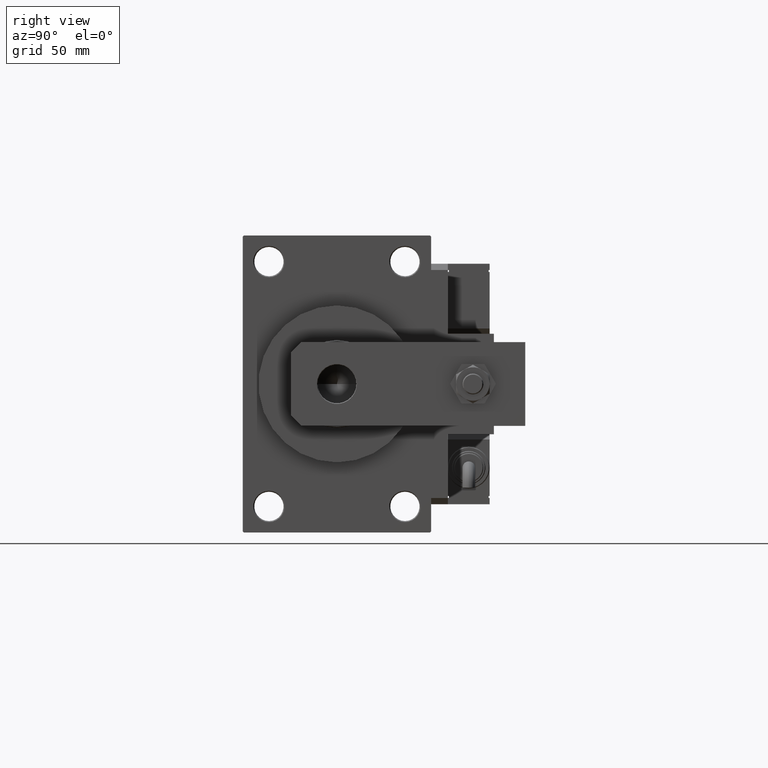
[diagram: clean part render]
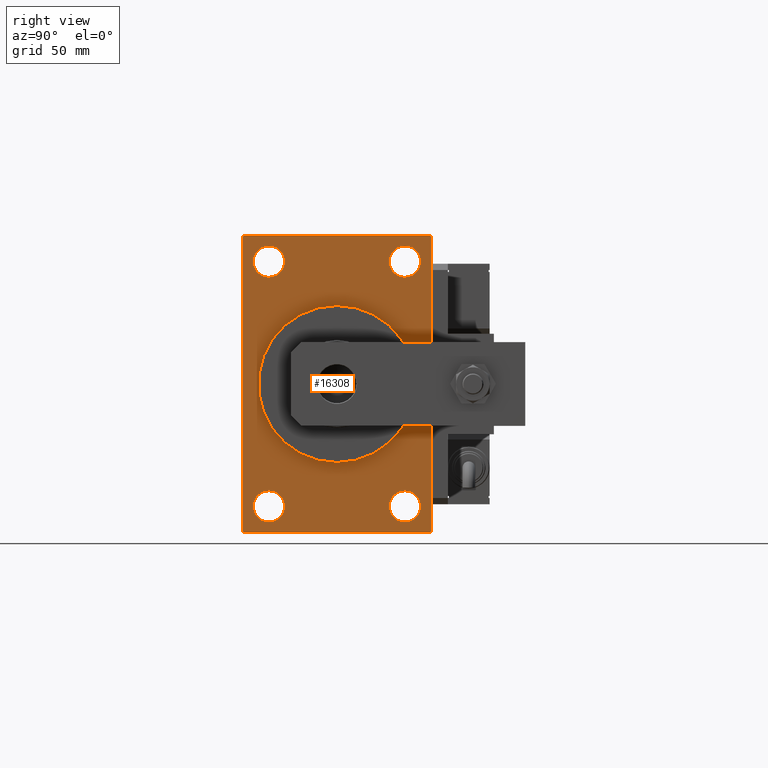
[diagram: same view with one face highlighted and labeled with its STEP entity id]
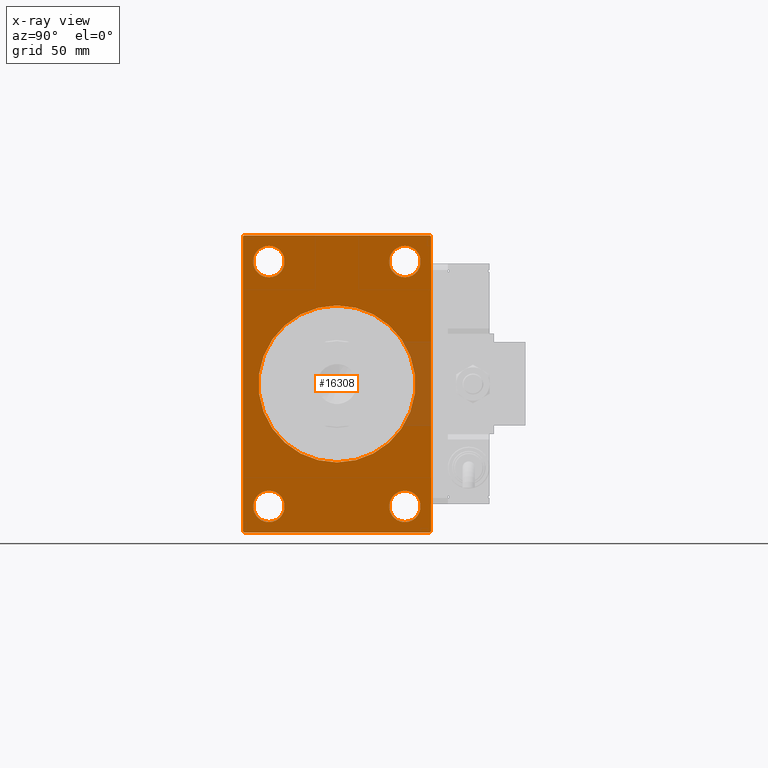
[diagram: x-ray of the same camera — body ghosted, the highlighted face saturated]
A machine part, right view. The second image highlights one B-rep face of the part: STEP entity #16308.
The next image is the same camera in x-ray: the body ghosted, the highlighted face saturated — about 5% of this face is hidden behind the body in this view.
In plain terms, the highlighted planar face has unit normal (-1, 0, 0).
Its self-contained STEP definition (entity closure, byte-faithful):
#154 = VERTEX_POINT ( 'NONE', #27223 ) ;
#470 = DIRECTION ( 'NONE',  ( -0.000000000000000000, 0.000000000000000000, 1.000000000000000000 ) ) ;
#877 = CARTESIAN_POINT ( 'NONE',  ( 200.0000000000000000, 45.00000000000000000, -70.49999999999997158 ) ) ;
#1031 = FACE_BOUND ( 'NONE', #27271, .T. ) ;
#1055 = CARTESIAN_POINT ( 'NONE',  ( 200.0000000000000000, 0.000000000000000000, 0.000000000000000000 ) ) ;
#1650 = DIRECTION ( 'NONE',  ( 0.000000000000000000, -0.7071067811865671127, 0.7071067811865279218 ) ) ;
#1682 = ORIENTED_EDGE ( 'NONE', *, *, #18571, .T. ) ;
#2003 = VECTOR ( 'NONE', #1650, 1000.000000000000000 ) ;
#2558 = CARTESIAN_POINT ( 'NONE',  ( 200.0000000000000000, -45.00000000000000000, 70.49999999999997158 ) ) ;
#2587 = VERTEX_POINT ( 'NONE', #19680 ) ;
#2923 = CARTESIAN_POINT ( 'NONE',  ( 200.0000000000000000, 45.00000000000000000, -70.49999999999997158 ) ) ;
#3150 = EDGE_CURVE ( 'NONE', #4960, #36344, #23835, .T. ) ;
#3830 = CARTESIAN_POINT ( 'NONE',  ( 200.0000000000000000, 0.000000000000000000, 0.000000000000000000 ) ) ;
#3900 = DIRECTION ( 'NONE',  ( -1.000000000000000000, -0.000000000000000000, -0.000000000000000000 ) ) ;
#3920 = VECTOR ( 'NONE', #34834, 1000.000000000000000 ) ;
#4158 = CARTESIAN_POINT ( 'NONE',  ( 200.0000000000000000, 45.00000000000000000, 71.00000000000000000 ) ) ;
#4405 = DIRECTION ( 'NONE',  ( 1.000000000000000000, 0.000000000000000000, 0.000000000000000000 ) ) ;
#4553 = CARTESIAN_POINT ( 'NONE',  ( 200.0000000000000000, -32.50000000000001421, 66.00000000000001421 ) ) ;
#4960 = VERTEX_POINT ( 'NONE', #39753 ) ;
#5645 = VECTOR ( 'NONE', #38728, 1000.000000000000000 ) ;
#5914 = DIRECTION ( 'NONE',  ( 0.000000000000000000, 0.000000000000000000, 1.000000000000000000 ) ) ;
#6051 = FACE_OUTER_BOUND ( 'NONE', #28302, .T. ) ;
#6380 = VERTEX_POINT ( 'NONE', #4553 ) ;
#7286 = CIRCLE ( 'NONE', #33904, 7.500000000000000000 ) ;
#7403 = VECTOR ( 'NONE', #49281, 1000.000000000000114 ) ;
#7469 = ORIENTED_EDGE ( 'NONE', *, *, #3150, .F. ) ;
#8101 = DIRECTION ( 'NONE',  ( 0.000000000000000000, 0.000000000000000000, 1.000000000000000000 ) ) ;
#8683 = VERTEX_POINT ( 'NONE', #39543 ) ;
#9280 = VERTEX_POINT ( 'NONE', #37464 ) ;
#9400 = FACE_BOUND ( 'NONE', #22724, .T. ) ;
#9552 = CARTESIAN_POINT ( 'NONE',  ( 200.0000000000000000, 45.00000000000000000, 71.00000000000000000 ) ) ;
#9684 = FACE_BOUND ( 'NONE', #54178, .T. ) ;
#9816 = LINE ( 'NONE', #877, #16749 ) ;
#10898 = CARTESIAN_POINT ( 'NONE',  ( 200.0000000000000000, -45.00000000000000000, 70.49999999999997158 ) ) ;
#11294 = VECTOR ( 'NONE', #16960, 1000.000000000000000 ) ;
#11367 = ORIENTED_EDGE ( 'NONE', *, *, #13591, .T. ) ;
#11483 = DIRECTION ( 'NONE',  ( -1.000000000000000000, -0.000000000000000000, -0.000000000000000000 ) ) ;
#11935 = CARTESIAN_POINT ( 'NONE',  ( 200.0000000000000000, 32.49999999999998579, 58.50000000000000711 ) ) ;
#11965 = CARTESIAN_POINT ( 'NONE',  ( 200.0000000000000000, -32.50000000000001421, 51.00000000000001421 ) ) ;
#12206 = DIRECTION ( 'NONE',  ( -1.000000000000000000, -0.000000000000000000, -0.000000000000000000 ) ) ;
#12972 = EDGE_CURVE ( 'NONE', #13968, #37310, #52081, .T. ) ;
#13353 = AXIS2_PLACEMENT_3D ( 'NONE', #17881, #35669, #5914 ) ;
#13591 = EDGE_CURVE ( 'NONE', #6380, #42541, #7286, .T. ) ;
#13722 = DIRECTION ( 'NONE',  ( 0.000000000000000000, 0.000000000000000000, -1.000000000000000000 ) ) ;
#13968 = VERTEX_POINT ( 'NONE', #32870 ) ;
#14006 = DIRECTION ( 'NONE',  ( 0.000000000000000000, 0.000000000000000000, 1.000000000000000000 ) ) ;
#14160 = CIRCLE ( 'NONE', #44367, 7.500000000000076383 ) ;
#14759 = EDGE_CURVE ( 'NONE', #13968, #54299, #17519, .T. ) ;
#15367 = ORIENTED_EDGE ( 'NONE', *, *, #19818, .T. ) ;
#15526 = DIRECTION ( 'NONE',  ( 0.000000000000000000, 0.000000000000000000, 1.000000000000000000 ) ) ;
#16288 = AXIS2_PLACEMENT_3D ( 'NONE', #45118, #11483, #46740 ) ;
#16308 = ADVANCED_FACE ( 'NONE', ( #9684, #9400, #22474, #1031, #26354, #6051 ), #43870, .F. ) ;
#16332 = CARTESIAN_POINT ( 'NONE',  ( 200.0000000000000000, 32.49999999999998579, -58.49999999999998579 ) ) ;
#16361 = DIRECTION ( 'NONE',  ( 0.000000000000000000, 0.000000000000000000, 1.000000000000000000 ) ) ;
#16440 = CARTESIAN_POINT ( 'NONE',  ( 200.0000000000000000, -32.50000000000001421, 58.50000000000001421 ) ) ;
#16749 = VECTOR ( 'NONE', #43447, 1000.000000000000114 ) ;
#16960 = DIRECTION ( 'NONE',  ( 0.000000000000000000, -1.000000000000000000, 0.000000000000000000 ) ) ;
#17519 = LINE ( 'NONE', #39201, #2003 ) ;
#17881 = CARTESIAN_POINT ( 'NONE',  ( 200.0000000000000000, -32.50000000000001421, -58.49999999999998579 ) ) ;
#17905 = CARTESIAN_POINT ( 'NONE',  ( 200.0000000000000000, -44.49999999999997158, -71.00000000000000000 ) ) ;
#18244 = VECTOR ( 'NONE', #44607, 1000.000000000000000 ) ;
#18571 = EDGE_CURVE ( 'NONE', #154, #8683, #45700, .T. ) ;
#19152 = ORIENTED_EDGE ( 'NONE', *, *, #50570, .F. ) ;
#19503 = EDGE_CURVE ( 'NONE', #52113, #23454, #37912, .T. ) ;
#19680 = CARTESIAN_POINT ( 'NONE',  ( 200.0000000000000000, -45.00000000000000000, -70.50000000000001421 ) ) ;
#19818 = EDGE_CURVE ( 'NONE', #43465, #27107, #23717, .T. ) ;
#19822 = EDGE_CURVE ( 'NONE', #52949, #48034, #52689, .T. ) ;
#20296 = ORIENTED_EDGE ( 'NONE', *, *, #27231, .T. ) ;
#20603 = LINE ( 'NONE', #4158, #11294 ) ;
#20825 = DIRECTION ( 'NONE',  ( 1.000000000000000000, 0.000000000000000000, 0.000000000000000000 ) ) ;
#22474 = FACE_BOUND ( 'NONE', #38918, .T. ) ;
#22724 = EDGE_LOOP ( 'NONE', ( #26663, #1682 ) ) ;
#23454 = VERTEX_POINT ( 'NONE', #17905 ) ;
#23531 = DIRECTION ( 'NONE',  ( -1.000000000000000000, -0.000000000000000000, -0.000000000000000000 ) ) ;
#23717 = LINE ( 'NONE', #2558, #7403 ) ;
#23835 = CIRCLE ( 'NONE', #30923, 37.50000000000000711 ) ;
#24353 = DIRECTION ( 'NONE',  ( 0.000000000000000000, 0.000000000000000000, 1.000000000000000000 ) ) ;
#24452 = DIRECTION ( 'NONE',  ( 0.000000000000000000, 0.000000000000000000, -1.000000000000000000 ) ) ;
#24622 = CARTESIAN_POINT ( 'NONE',  ( 200.0000000000000000, 32.49999999999998579, -58.49999999999998579 ) ) ;
#24858 = DIRECTION ( 'NONE',  ( 0.000000000000000000, 0.000000000000000000, 1.000000000000000000 ) ) ;
#26262 = VERTEX_POINT ( 'NONE', #42192 ) ;
#26354 = FACE_BOUND ( 'NONE', #42555, .T. ) ;
#26606 = CIRCLE ( 'NONE', #35501, 37.50000000000000711 ) ;
#26663 = ORIENTED_EDGE ( 'NONE', *, *, #54954, .T. ) ;
#26779 = DIRECTION ( 'NONE',  ( -1.000000000000000000, -0.000000000000000000, -0.000000000000000000 ) ) ;
#27048 = AXIS2_PLACEMENT_3D ( 'NONE', #44295, #26779, #14006 ) ;
#27107 = VERTEX_POINT ( 'NONE', #10898 ) ;
#27223 = CARTESIAN_POINT ( 'NONE',  ( 200.0000000000000000, -32.50000000000001421, -50.99999999999989342 ) ) ;
#27231 = EDGE_CURVE ( 'NONE', #54299, #43465, #20603, .T. ) ;
#27271 = EDGE_LOOP ( 'NONE', ( #33111, #34728 ) ) ;
#27745 = CARTESIAN_POINT ( 'NONE',  ( 200.0000000000000000, 32.49999999999998579, 66.00000000000008527 ) ) ;
#28148 = CIRCLE ( 'NONE', #42357, 7.500000000000089706 ) ;
#28210 = CARTESIAN_POINT ( 'NONE',  ( 200.0000000000000000, -32.50000000000001421, 58.50000000000001421 ) ) ;
#28302 = EDGE_LOOP ( 'NONE', ( #52850, #33444, #42876, #53883, #49018, #42522, #20296, #15367 ) ) ;
#28822 = AXIS2_PLACEMENT_3D ( 'NONE', #16332, #54408, #15526 ) ;
#29406 = CARTESIAN_POINT ( 'NONE',  ( 200.0000000000000000, 4.592425496802575156E-15, -37.50000000000000711 ) ) ;
#29444 = VECTOR ( 'NONE', #13722, 1000.000000000000000 ) ;
#29848 = CARTESIAN_POINT ( 'NONE',  ( 200.0000000000000000, 44.49999999999997158, -71.00000000000000000 ) ) ;
#30103 = LINE ( 'NONE', #43455, #3920 ) ;
#30923 = AXIS2_PLACEMENT_3D ( 'NONE', #1055, #4405, #47794 ) ;
#31078 = DIRECTION ( 'NONE',  ( -1.000000000000000000, 0.000000000000000000, -0.000000000000000000 ) ) ;
#31264 = CARTESIAN_POINT ( 'NONE',  ( 200.0000000000000000, -45.00000000000000000, 71.00000000000000000 ) ) ;
#32083 = LINE ( 'NONE', #31264, #18244 ) ;
#32870 = CARTESIAN_POINT ( 'NONE',  ( 200.0000000000000000, 45.00000000000000000, 70.50000000000001421 ) ) ;
#33111 = ORIENTED_EDGE ( 'NONE', *, *, #49461, .T. ) ;
#33125 = ORIENTED_EDGE ( 'NONE', *, *, #40410, .T. ) ;
#33154 = AXIS2_PLACEMENT_3D ( 'NONE', #38578, #31078, #470 ) ;
#33393 = AXIS2_PLACEMENT_3D ( 'NONE', #16440, #3900, #8101 ) ;
#33444 = ORIENTED_EDGE ( 'NONE', *, *, #36737, .T. ) ;
#33904 = AXIS2_PLACEMENT_3D ( 'NONE', #28210, #49905, #24858 ) ;
#33955 = CARTESIAN_POINT ( 'NONE',  ( 200.0000000000000000, -44.49999999999994316, 71.00000000000000000 ) ) ;
#34728 = ORIENTED_EDGE ( 'NONE', *, *, #19822, .T. ) ;
#34834 = DIRECTION ( 'NONE',  ( 0.000000000000000000, 0.7071067811865671127, -0.7071067811865279218 ) ) ;
#35501 = AXIS2_PLACEMENT_3D ( 'NONE', #3830, #20825, #24452 ) ;
#35669 = DIRECTION ( 'NONE',  ( -1.000000000000000000, -0.000000000000000000, -0.000000000000000000 ) ) ;
#36344 = VERTEX_POINT ( 'NONE', #29406 ) ;
#36737 = EDGE_CURVE ( 'NONE', #2587, #23454, #30103, .T. ) ;
#37077 = EDGE_CURVE ( 'NONE', #26262, #9280, #44837, .T. ) ;
#37310 = VERTEX_POINT ( 'NONE', #2923 ) ;
#37464 = CARTESIAN_POINT ( 'NONE',  ( 200.0000000000000000, 32.49999999999998579, -66.00000000000005684 ) ) ;
#37477 = ORIENTED_EDGE ( 'NONE', *, *, #44860, .T. ) ;
#37912 = LINE ( 'NONE', #46525, #5645 ) ;
#38484 = EDGE_CURVE ( 'NONE', #27107, #2587, #32083, .T. ) ;
#38578 = CARTESIAN_POINT ( 'NONE',  ( 200.0000000000000000, 0.000000000000000000, 0.000000000000000000 ) ) ;
#38698 = CIRCLE ( 'NONE', #33393, 7.500000000000000000 ) ;
#38728 = DIRECTION ( 'NONE',  ( 0.000000000000000000, -1.000000000000000000, 0.000000000000000000 ) ) ;
#38918 = EDGE_LOOP ( 'NONE', ( #37477, #51732 ) ) ;
#39201 = CARTESIAN_POINT ( 'NONE',  ( 200.0000000000000000, 44.50000000000000000, 71.00000000000000000 ) ) ;
#39543 = CARTESIAN_POINT ( 'NONE',  ( 200.0000000000000000, -32.50000000000001421, -66.00000000000005684 ) ) ;
#39753 = CARTESIAN_POINT ( 'NONE',  ( 200.0000000000000000, 0.000000000000000000, 37.50000000000000711 ) ) ;
#40410 = EDGE_CURVE ( 'NONE', #42541, #6380, #38698, .T. ) ;
#42192 = CARTESIAN_POINT ( 'NONE',  ( 200.0000000000000000, 32.49999999999998579, -50.99999999999989342 ) ) ;
#42357 = AXIS2_PLACEMENT_3D ( 'NONE', #24622, #23531, #24353 ) ;
#42522 = ORIENTED_EDGE ( 'NONE', *, *, #14759, .T. ) ;
#42541 = VERTEX_POINT ( 'NONE', #11965 ) ;
#42555 = EDGE_LOOP ( 'NONE', ( #7469, #19152 ) ) ;
#42876 = ORIENTED_EDGE ( 'NONE', *, *, #19503, .F. ) ;
#43379 = CARTESIAN_POINT ( 'NONE',  ( 200.0000000000000000, 32.49999999999998579, 50.99999999999993605 ) ) ;
#43447 = DIRECTION ( 'NONE',  ( -0.000000000000000000, 0.7071067811865474617, 0.7071067811865474617 ) ) ;
#43455 = CARTESIAN_POINT ( 'NONE',  ( 200.0000000000000000, -44.50000000000000000, -71.00000000000000000 ) ) ;
#43465 = VERTEX_POINT ( 'NONE', #33955 ) ;
#43870 = PLANE ( 'NONE',  #33154 ) ;
#44295 = CARTESIAN_POINT ( 'NONE',  ( 200.0000000000000000, -32.50000000000001421, -58.49999999999998579 ) ) ;
#44367 = AXIS2_PLACEMENT_3D ( 'NONE', #11935, #12206, #16361 ) ;
#44445 = CIRCLE ( 'NONE', #13353, 7.500000000000089706 ) ;
#44607 = DIRECTION ( 'NONE',  ( 0.000000000000000000, 0.000000000000000000, -1.000000000000000000 ) ) ;
#44837 = CIRCLE ( 'NONE', #28822, 7.500000000000089706 ) ;
#44860 = EDGE_CURVE ( 'NONE', #9280, #26262, #28148, .T. ) ;
#45118 = CARTESIAN_POINT ( 'NONE',  ( 200.0000000000000000, 32.49999999999998579, 58.50000000000000711 ) ) ;
#45700 = CIRCLE ( 'NONE', #27048, 7.500000000000089706 ) ;
#46525 = CARTESIAN_POINT ( 'NONE',  ( 200.0000000000000000, 45.00000000000000000, -71.00000000000000000 ) ) ;
#46740 = DIRECTION ( 'NONE',  ( 0.000000000000000000, 0.000000000000000000, 1.000000000000000000 ) ) ;
#47794 = DIRECTION ( 'NONE',  ( 0.000000000000000000, 0.000000000000000000, -1.000000000000000000 ) ) ;
#48034 = VERTEX_POINT ( 'NONE', #43379 ) ;
#48834 = EDGE_CURVE ( 'NONE', #52113, #37310, #9816, .T. ) ;
#49018 = ORIENTED_EDGE ( 'NONE', *, *, #12972, .F. ) ;
#49281 = DIRECTION ( 'NONE',  ( -0.000000000000000000, -0.7071067811865474617, -0.7071067811865474617 ) ) ;
#49461 = EDGE_CURVE ( 'NONE', #48034, #52949, #14160, .T. ) ;
#49905 = DIRECTION ( 'NONE',  ( -1.000000000000000000, -0.000000000000000000, -0.000000000000000000 ) ) ;
#50570 = EDGE_CURVE ( 'NONE', #36344, #4960, #26606, .T. ) ;
#50733 = CARTESIAN_POINT ( 'NONE',  ( 200.0000000000000000, 44.50000000000000000, 71.00000000000000000 ) ) ;
#51732 = ORIENTED_EDGE ( 'NONE', *, *, #37077, .T. ) ;
#52081 = LINE ( 'NONE', #9552, #29444 ) ;
#52113 = VERTEX_POINT ( 'NONE', #29848 ) ;
#52689 = CIRCLE ( 'NONE', #16288, 7.500000000000076383 ) ;
#52850 = ORIENTED_EDGE ( 'NONE', *, *, #38484, .T. ) ;
#52949 = VERTEX_POINT ( 'NONE', #27745 ) ;
#53883 = ORIENTED_EDGE ( 'NONE', *, *, #48834, .T. ) ;
#54178 = EDGE_LOOP ( 'NONE', ( #33125, #11367 ) ) ;
#54299 = VERTEX_POINT ( 'NONE', #50733 ) ;
#54408 = DIRECTION ( 'NONE',  ( -1.000000000000000000, -0.000000000000000000, -0.000000000000000000 ) ) ;
#54954 = EDGE_CURVE ( 'NONE', #8683, #154, #44445, .T. ) ;